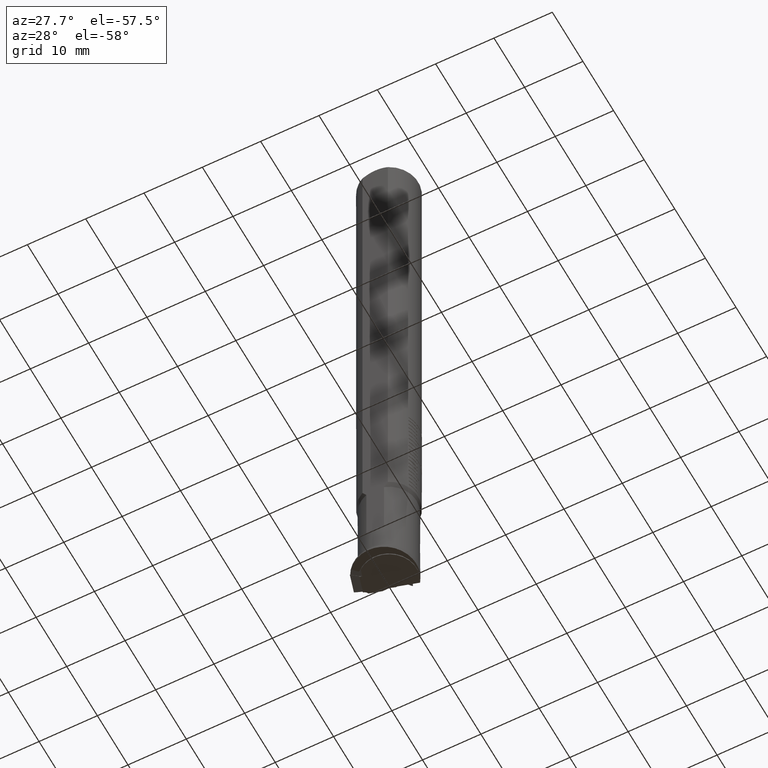
[diagram: clean part render]
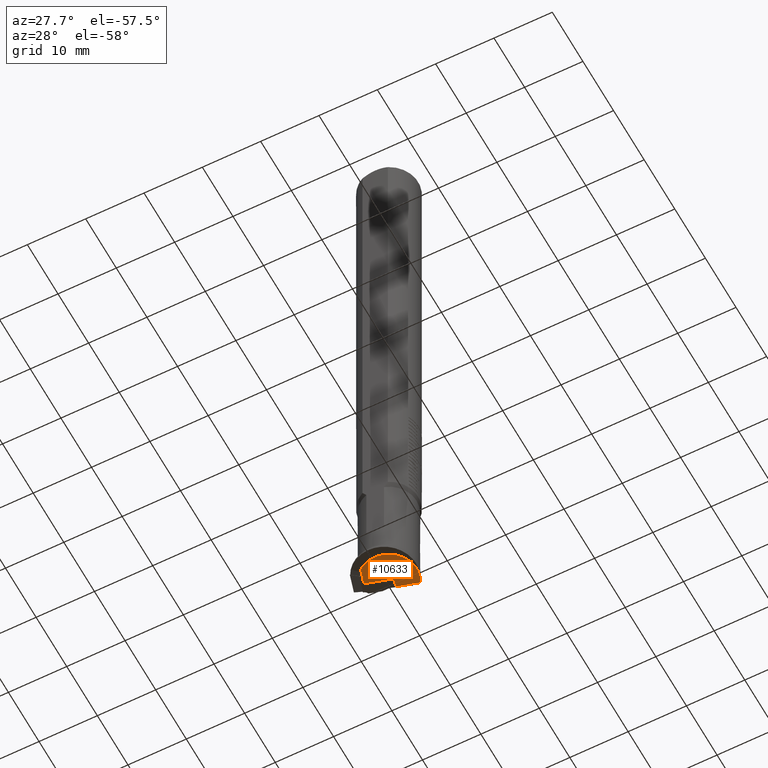
[diagram: same view with one face highlighted and labeled with its STEP entity id]
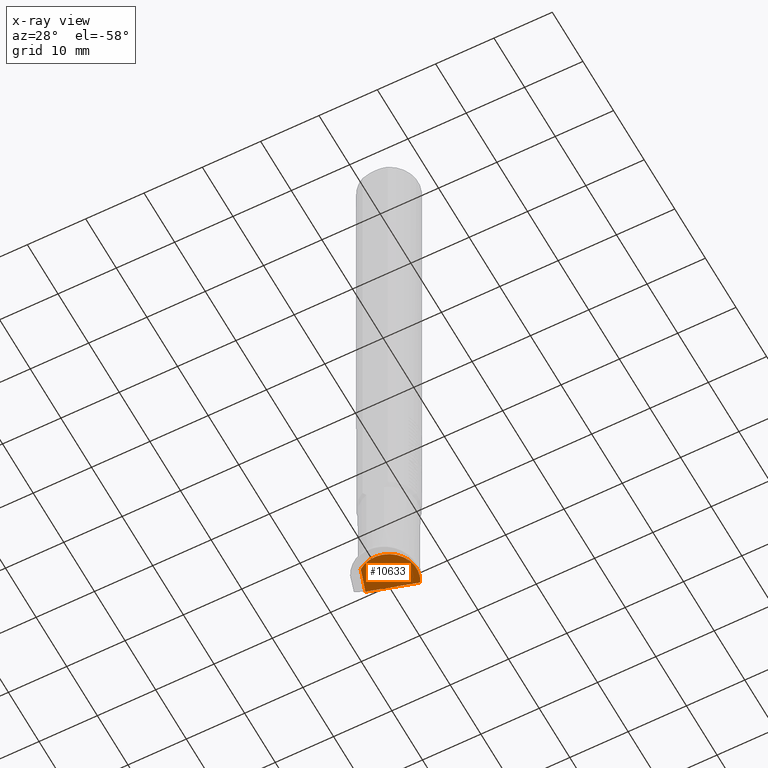
[diagram: x-ray of the same camera — body ghosted, the highlighted face saturated]
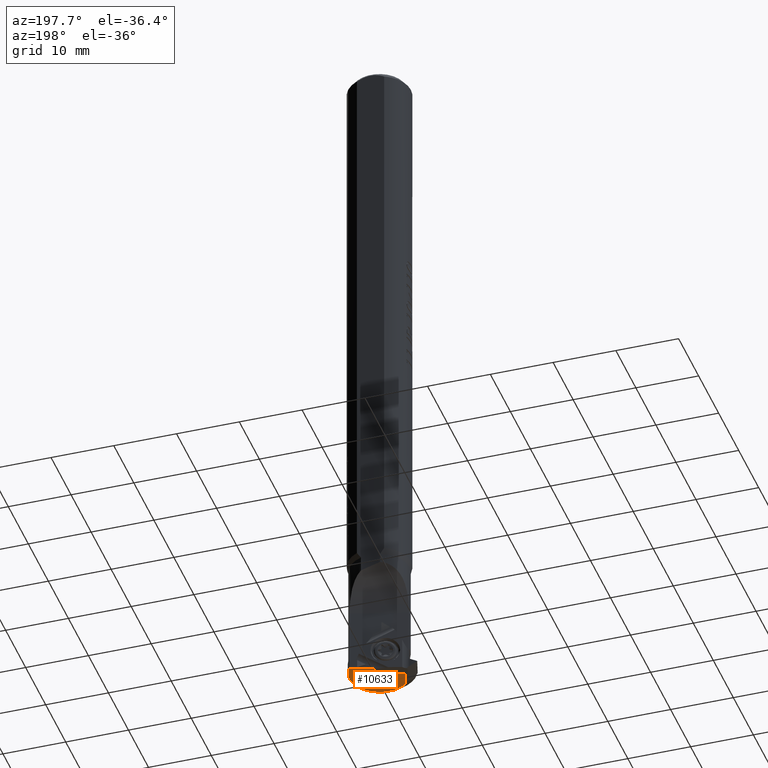
[diagram: same view with one face highlighted and labeled with its STEP entity id]
A machine part, auxiliary view. The second image highlights one B-rep face of the part: STEP entity #10633.
The next image is the same camera in x-ray: the body ghosted, the highlighted face saturated — about 0% of this face is hidden behind the body in this view.
A second angle (auxiliary view) of the same face is appended — the face is thin or edge-on in the first view.
In plain terms, the highlighted planar face has unit normal (0, 0, 1).
Its self-contained STEP definition (entity closure, byte-faithful):
#298 = VERTEX_POINT ( 'NONE', #4312 ) ;
#341 = ORIENTED_EDGE ( 'NONE', *, *, #7013, .F. ) ;
#884 = CARTESIAN_POINT ( 'NONE',  ( 38.82511223906774944, 23.51082534211475306, 35.80381493073641508 ) ) ;
#1005 = CARTESIAN_POINT ( 'NONE',  ( 38.82511223906771392, 18.41271829807767091, 28.54692103382469881 ) ) ;
#1378 = VECTOR ( 'NONE', #2713, 1000.000000000000114 ) ;
#1471 = DIRECTION ( 'NONE',  ( 0.000000000000000000, 0.000000000000000000, 1.000000000000000000 ) ) ;
#1611 = LINE ( 'NONE', #3735, #4283 ) ;
#2652 = FACE_OUTER_BOUND ( 'NONE', #4981, .T. ) ;
#2713 = DIRECTION ( 'NONE',  ( -0.000000000000000000, -0.2840153447039163170, -0.9588197348681949395 ) ) ;
#3312 = ORIENTED_EDGE ( 'NONE', *, *, #11426, .F. ) ;
#3728 = EDGE_CURVE ( 'NONE', #5008, #298, #6085, .T. ) ;
#3735 = CARTESIAN_POINT ( 'NONE',  ( 38.82511223906772102, 21.09912254246513186, 27.66204272701421019 ) ) ;
#4283 = VECTOR ( 'NONE', #8868, 1000.000000000000114 ) ;
#4312 = CARTESIAN_POINT ( 'NONE',  ( 38.81431338016200527, 17.19919015892523362, 28.90795454337535020 ) ) ;
#4495 = CARTESIAN_POINT ( 'NONE',  ( 38.82511223906771392, 18.41271829807767091, 28.54692103382469881 ) ) ;
#4624 = CARTESIAN_POINT ( 'NONE',  ( 38.82511223906774944, 26.13946826277036450, 44.67796470906498030 ) ) ;
#4829 = CARTESIAN_POINT ( 'NONE',  ( 38.82511223906776365, 20.97579512832781035, 31.78683574045086502 ) ) ;
#4976 = CIRCLE ( 'NONE', #5847, 4.749999999999990230 ) ;
#4981 = EDGE_LOOP ( 'NONE', ( #7604, #341, #3312, #10007 ) ) ;
#5008 = VERTEX_POINT ( 'NONE', #4495 ) ;
#5167 = AXIS2_PLACEMENT_3D ( 'NONE', #5507, #9752, #1471 ) ;
#5507 = CARTESIAN_POINT ( 'NONE',  ( 38.82511223906772102, 25.72579512832778192, 31.78683574045086502 ) ) ;
#5847 = AXIS2_PLACEMENT_3D ( 'NONE', #4829, #8054, #12213 ) ;
#6085 = B_SPLINE_CURVE_WITH_KNOTS ( 'NONE', 3,
 ( #1005, #9351, #7242, #11401 ),
 .UNSPECIFIED., .F., .F.,
 ( 4, 4 ),
 ( 0.000000000000000000, 1.000000000000000000 ),
 .UNSPECIFIED. ) ;
#6223 = EDGE_CURVE ( 'NONE', #298, #8712, #4976, .T. ) ;
#6836 = PLANE ( 'NONE',  #5167 ) ;
#7013 = EDGE_CURVE ( 'NONE', #9457, #5008, #1611, .T. ) ;
#7242 = CARTESIAN_POINT ( 'NONE',  ( 38.81406533305213458, 17.60538199527532655, 28.79271781445186917 ) ) ;
#7604 = ORIENTED_EDGE ( 'NONE', *, *, #3728, .F. ) ;
#8054 = DIRECTION ( 'NONE',  ( -1.000000000000000000, -0.000000000000000000, -0.000000000000000000 ) ) ;
#8712 = VERTEX_POINT ( 'NONE', #884 ) ;
#8795 = LINE ( 'NONE', #4624, #1378 ) ;
#8827 = CARTESIAN_POINT ( 'NONE',  ( 38.82511223906774234, 21.09912254246513541, 27.66204272701419598 ) ) ;
#8868 = DIRECTION ( 'NONE',  ( 0.000000000000000000, -0.9498005443603600995, 0.3128560786252422288 ) ) ;
#9351 = CARTESIAN_POINT ( 'NONE',  ( 38.81958878605991714, 18.00905014667650050, 28.66981942413828577 ) ) ;
#9457 = VERTEX_POINT ( 'NONE', #8827 ) ;
#9752 = DIRECTION ( 'NONE',  ( -1.000000000000000000, 0.000000000000000000, 0.000000000000000000 ) ) ;
#10007 = ORIENTED_EDGE ( 'NONE', *, *, #6223, .F. ) ;
#10633 = ADVANCED_FACE ( 'NONE', ( #2652 ), #6836, .F. ) ;
#11401 = CARTESIAN_POINT ( 'NONE',  ( 38.81431338016200527, 17.19919015892523362, 28.90795454337535020 ) ) ;
#11426 = EDGE_CURVE ( 'NONE', #8712, #9457, #8795, .T. ) ;
#12213 = DIRECTION ( 'NONE',  ( 0.000000000000000000, 0.000000000000000000, 1.000000000000000000 ) ) ;